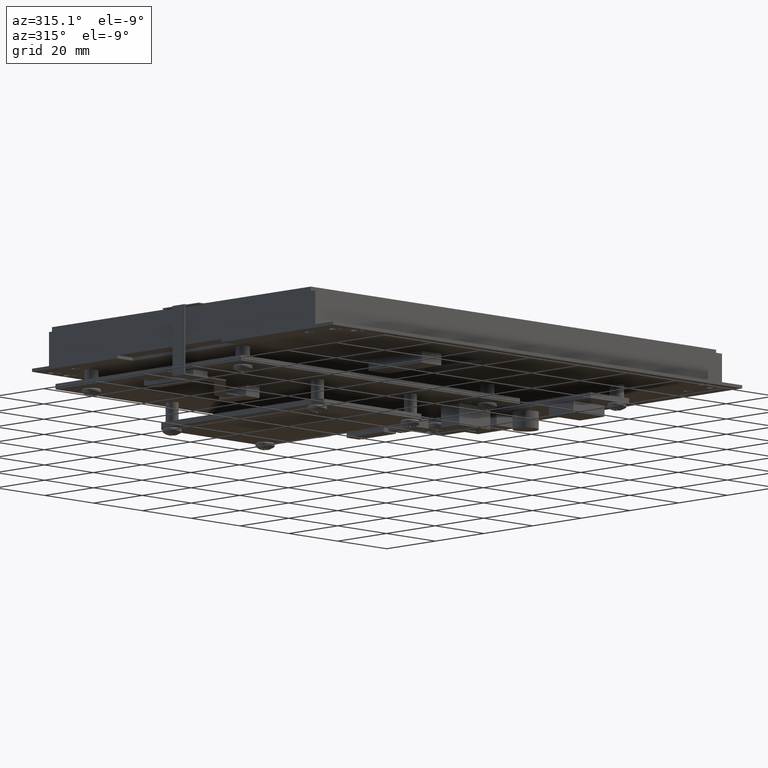
[diagram: clean part render]
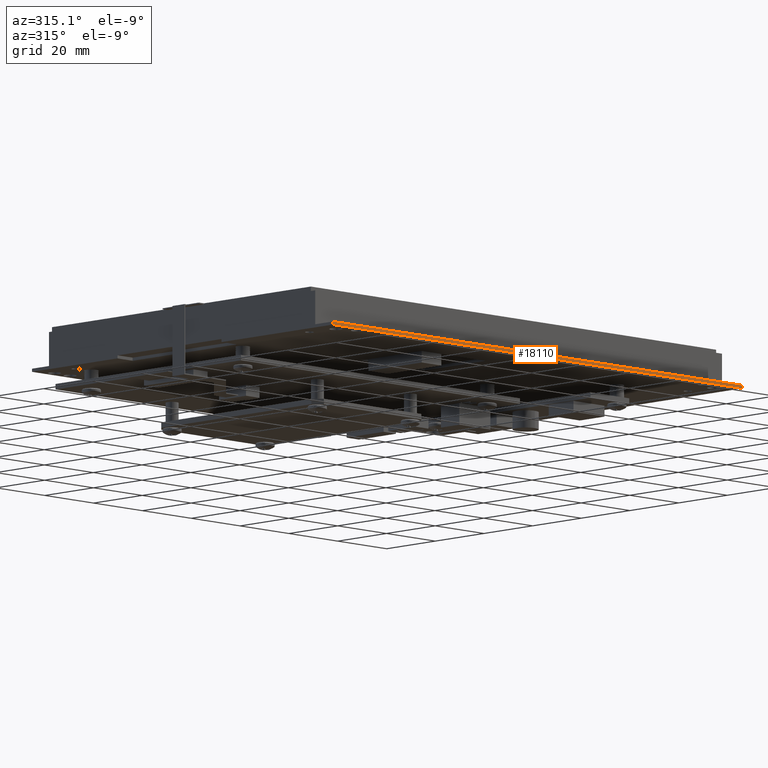
[diagram: same view with one face highlighted and labeled with its STEP entity id]
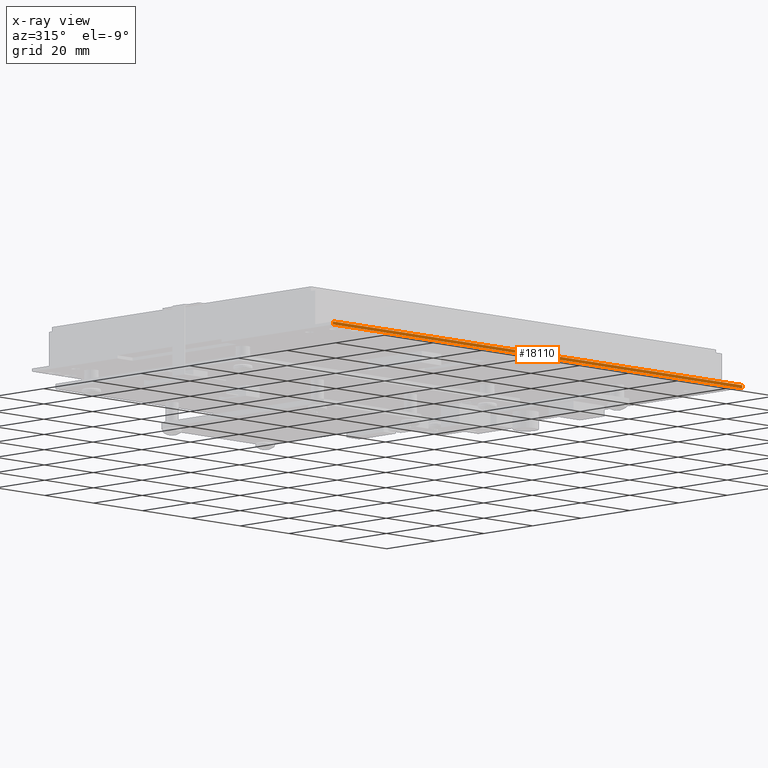
[diagram: x-ray of the same camera — body ghosted, the highlighted face saturated]
A machine part, auxiliary view. The second image highlights one B-rep face of the part: STEP entity #18110.
The next image is the same camera in x-ray: the body ghosted, the highlighted face saturated — about 0% of this face is hidden behind the body in this view.
In plain terms, the highlighted planar face has unit normal (0, 1, 0).
Its self-contained STEP definition (entity closure, byte-faithful):
#1131 = EDGE_LOOP ( 'NONE', ( #8269, #8270, #8271, #8272 ) ) ;
#1431 = VECTOR ( 'NONE', #11138, 39.37007874015748100 ) ;
#1436 = VECTOR ( 'NONE', #11180, 39.37007874015748100 ) ;
#1437 = VECTOR ( 'NONE', #11186, 39.37007874015748100 ) ;
#1439 = VECTOR ( 'NONE', #11192, 39.37007874015748100 ) ;
#2850 = CARTESIAN_POINT ( 'NONE',  ( -3.300000000000000700, -2.435000000000000100, 0.0000000000000000000 ) ) ;
#2856 = CARTESIAN_POINT ( 'NONE',  ( -3.300000000000000700, -2.435000000000000100, 0.03599999999999999700 ) ) ;
#2858 = CARTESIAN_POINT ( 'NONE',  ( 3.299999999999998500, -2.435000000000000100, 0.03599999999999999700 ) ) ;
#5629 = VERTEX_POINT ( 'NONE', #2850 ) ;
#5635 = VERTEX_POINT ( 'NONE', #2856 ) ;
#5637 = VERTEX_POINT ( 'NONE', #2858 ) ;
#5881 = AXIS2_PLACEMENT_3D ( 'NONE', #12519, #12530, #12531 ) ;
#8269 = ORIENTED_EDGE ( 'NONE', *, *, #17718, .T. ) ;
#8270 = ORIENTED_EDGE ( 'NONE', *, *, #17711, .F. ) ;
#8271 = ORIENTED_EDGE ( 'NONE', *, *, #17719, .F. ) ;
#8272 = ORIENTED_EDGE ( 'NONE', *, *, #17717, .T. ) ;
#11115 = LINE ( 'NONE', #11175, #1436 ) ;
#11134 = LINE ( 'NONE', #11137, #1431 ) ;
#11137 = CARTESIAN_POINT ( 'NONE',  ( 3.299999999999998500, -2.435000000000000100, 0.03599999999999999700 ) ) ;
#11138 = DIRECTION ( 'NONE',  ( -0.0000000000000000000, -0.0000000000000000000, -1.000000000000000000 ) ) ;
#11163 = LINE ( 'NONE', #11182, #1437 ) ;
#11175 = CARTESIAN_POINT ( 'NONE',  ( -3.300000000000000700, -2.435000000000000100, 0.03599999999999999700 ) ) ;
#11180 = DIRECTION ( 'NONE',  ( -0.0000000000000000000, -0.0000000000000000000, -1.000000000000000000 ) ) ;
#11182 = CARTESIAN_POINT ( 'NONE',  ( -3.300000000000000700, -2.435000000000000100, 0.0000000000000000000 ) ) ;
#11186 = DIRECTION ( 'NONE',  ( 1.000000000000000000, 0.0000000000000000000, 0.0000000000000000000 ) ) ;
#11188 = LINE ( 'NONE', #11191, #1439 ) ;
#11191 = CARTESIAN_POINT ( 'NONE',  ( -3.300000000000000700, -2.435000000000000100, 0.03599999999999999700 ) ) ;
#11192 = DIRECTION ( 'NONE',  ( 1.000000000000000000, 0.0000000000000000000, 0.0000000000000000000 ) ) ;
#12519 = CARTESIAN_POINT ( 'NONE',  ( -3.300000000000000700, -2.435000000000000100, 0.03599999999999999700 ) ) ;
#12527 = FACE_OUTER_BOUND ( 'NONE', #1131, .T. ) ;
#12528 = PLANE ( 'NONE',  #5881 ) ;
#12530 = DIRECTION ( 'NONE',  ( 0.0000000000000000000, 1.000000000000000000, 0.0000000000000000000 ) ) ;
#12531 = DIRECTION ( 'NONE',  ( 0.0000000000000000000, -0.0000000000000000000, 1.000000000000000000 ) ) ;
#13089 = CARTESIAN_POINT ( 'NONE',  ( 3.299999999999998500, -2.435000000000000100, 0.0000000000000000000 ) ) ;
#17711 = EDGE_CURVE ( 'NONE', #5637, #18739, #11134, .T. ) ;
#17717 = EDGE_CURVE ( 'NONE', #5635, #5629, #11115, .T. ) ;
#17718 = EDGE_CURVE ( 'NONE', #5629, #18739, #11163, .T. ) ;
#17719 = EDGE_CURVE ( 'NONE', #5635, #5637, #11188, .T. ) ;
#18110 = ADVANCED_FACE ( 'NONE', ( #12527 ), #12528, .F. ) ;
#18739 = VERTEX_POINT ( 'NONE', #13089 ) ;